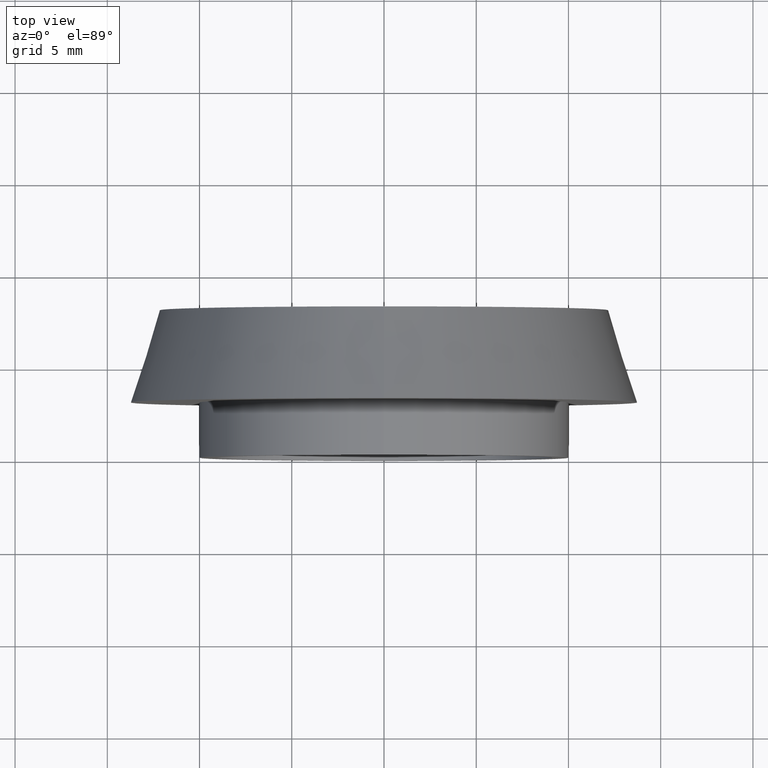
[diagram: clean part render]
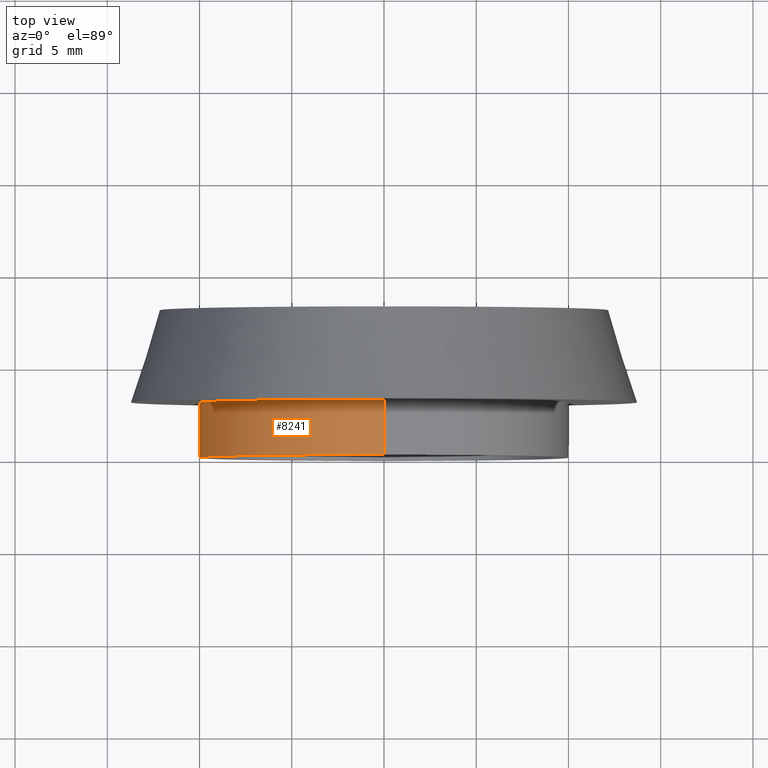
[diagram: same view with one face highlighted and labeled with its STEP entity id]
A machine part, top view. The second image highlights one B-rep face of the part: STEP entity #8241.
In plain terms, the highlighted cylindrical surface (partial cylindrical patch) has radius 10 mm, axis along (-0, -1, -0).
Its self-contained STEP definition (entity closure, byte-faithful):
#137 = CIRCLE ( 'NONE', #2180, 10.00000000000000000 ) ;
#499 = VECTOR ( 'NONE', #9634, 1000.000000000000000 ) ;
#560 = ORIENTED_EDGE ( 'NONE', *, *, #2098, .T. ) ;
#874 = DIRECTION ( 'NONE',  ( 0.000000000000000000, 0.000000000000000000, -1.000000000000000000 ) ) ;
#1047 = ORIENTED_EDGE ( 'NONE', *, *, #6645, .F. ) ;
#1225 = CARTESIAN_POINT ( 'NONE',  ( 1.224646799147353256E-15, 3.000000000000000444, 10.00000000000000000 ) ) ;
#1331 = DIRECTION ( 'NONE',  ( -0.000000000000000000, -1.000000000000000000, -0.000000000000000000 ) ) ;
#1720 = AXIS2_PLACEMENT_3D ( 'NONE', #10373, #1331, #2351 ) ;
#2098 = EDGE_CURVE ( 'NONE', #7080, #10052, #7273, .T. ) ;
#2180 = AXIS2_PLACEMENT_3D ( 'NONE', #13229, #7240, #5179 ) ;
#2351 = DIRECTION ( 'NONE',  ( 0.000000000000000000, 0.000000000000000000, -1.000000000000000000 ) ) ;
#2918 = AXIS2_PLACEMENT_3D ( 'NONE', #13280, #4978, #874 ) ;
#3187 = VECTOR ( 'NONE', #12352, 1000.000000000000000 ) ;
#4424 = CARTESIAN_POINT ( 'NONE',  ( 0.000000000000000000, 0.000000000000000000, -10.00000000000000000 ) ) ;
#4978 = DIRECTION ( 'NONE',  ( -0.000000000000000000, -1.000000000000000000, -0.000000000000000000 ) ) ;
#5179 = DIRECTION ( 'NONE',  ( 0.000000000000000000, 0.000000000000000000, -1.000000000000000000 ) ) ;
#5289 = EDGE_CURVE ( 'NONE', #9846, #7080, #137, .T. ) ;
#6026 = CARTESIAN_POINT ( 'NONE',  ( 0.000000000000000000, -2.994831679295024775E-16, -10.00000000000000000 ) ) ;
#6645 = EDGE_CURVE ( 'NONE', #9846, #9955, #10395, .T. ) ;
#7080 = VERTEX_POINT ( 'NONE', #9599 ) ;
#7240 = DIRECTION ( 'NONE',  ( -0.000000000000000000, -1.000000000000000000, -0.000000000000000000 ) ) ;
#7273 = LINE ( 'NONE', #4424, #499 ) ;
#8241 = ADVANCED_FACE ( 'NONE', ( #8787 ), #8935, .T. ) ;
#8787 = FACE_OUTER_BOUND ( 'NONE', #12158, .T. ) ;
#8935 = CYLINDRICAL_SURFACE ( 'NONE', #2918, 10.00000000000000000 ) ;
#9357 = EDGE_CURVE ( 'NONE', #9955, #10052, #12956, .T. ) ;
#9599 = CARTESIAN_POINT ( 'NONE',  ( 0.000000000000000000, 3.000000000000000444, -10.00000000000000000 ) ) ;
#9634 = DIRECTION ( 'NONE',  ( -0.000000000000000000, -1.000000000000000000, -0.000000000000000000 ) ) ;
#9707 = CARTESIAN_POINT ( 'NONE',  ( 1.224646799147353256E-15, -2.994831679295024775E-16, 10.00000000000000000 ) ) ;
#9846 = VERTEX_POINT ( 'NONE', #1225 ) ;
#9955 = VERTEX_POINT ( 'NONE', #9707 ) ;
#10052 = VERTEX_POINT ( 'NONE', #6026 ) ;
#10373 = CARTESIAN_POINT ( 'NONE',  ( 0.000000000000000000, -2.994831679295024775E-16, 0.000000000000000000 ) ) ;
#10395 = LINE ( 'NONE', #11260, #3187 ) ;
#11260 = CARTESIAN_POINT ( 'NONE',  ( 1.224646799147353256E-15, 0.000000000000000000, 10.00000000000000000 ) ) ;
#12158 = EDGE_LOOP ( 'NONE', ( #1047, #13037, #560, #12969 ) ) ;
#12352 = DIRECTION ( 'NONE',  ( -0.000000000000000000, -1.000000000000000000, -0.000000000000000000 ) ) ;
#12956 = CIRCLE ( 'NONE', #1720, 10.00000000000000000 ) ;
#12969 = ORIENTED_EDGE ( 'NONE', *, *, #9357, .F. ) ;
#13037 = ORIENTED_EDGE ( 'NONE', *, *, #5289, .T. ) ;
#13229 = CARTESIAN_POINT ( 'NONE',  ( 0.000000000000000000, 3.000000000000000444, 0.000000000000000000 ) ) ;
#13280 = CARTESIAN_POINT ( 'NONE',  ( 0.000000000000000000, 0.000000000000000000, 0.000000000000000000 ) ) ;